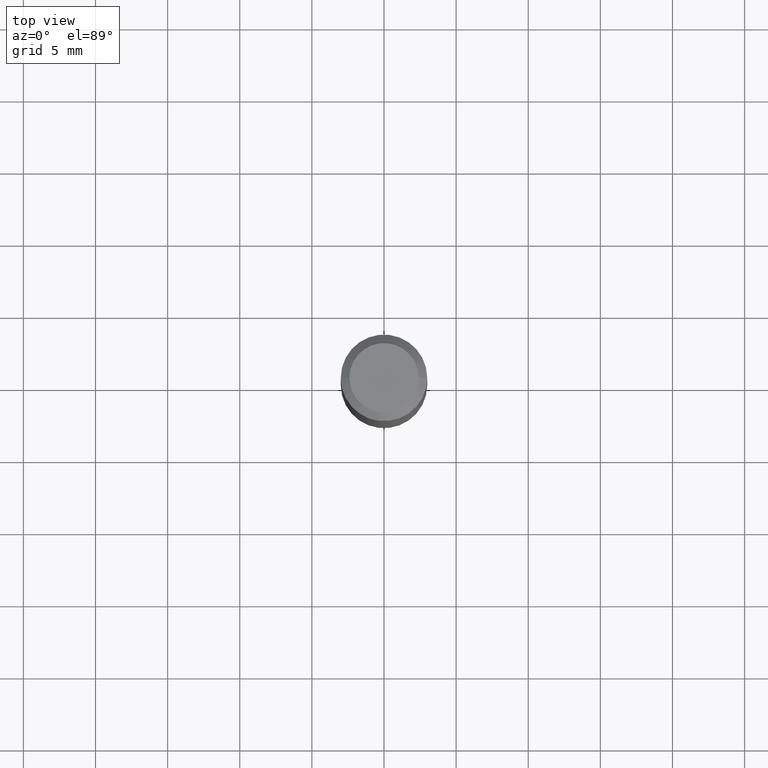
[diagram: clean part render]
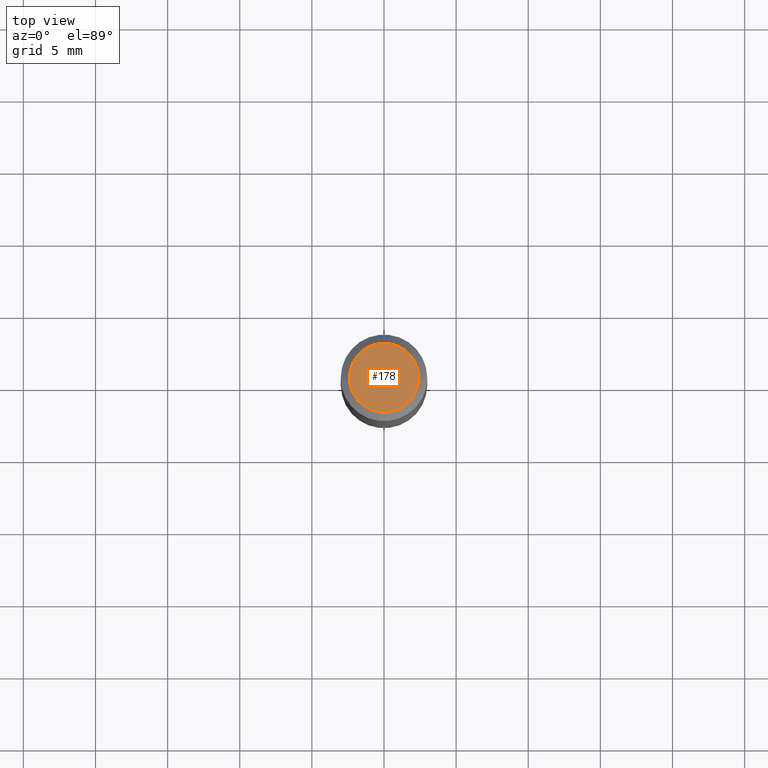
[diagram: same view with one face highlighted and labeled with its STEP entity id]
A machine part, top view. The second image highlights one B-rep face of the part: STEP entity #178.
In plain terms, the highlighted planar face has unit normal (0, -0, -1).
Its self-contained STEP definition (entity closure, byte-faithful):
#7 = CARTESIAN_POINT ( 'NONE',  ( 0.09447999999999998066, -7.704367267948738690E-16, -3.085620075131172158E-17 ) ) ;
#12 = CIRCLE ( 'NONE', #496, 0.09447999999999998066 ) ;
#20 = DIRECTION ( 'NONE',  ( 2.438088387897960049E-29, -3.491481338843145188E-15, -1.000000000000000000 ) ) ;
#26 = EDGE_LOOP ( 'NONE', ( #466, #268 ) ) ;
#68 = VERTEX_POINT ( 'NONE', #7 ) ;
#93 = CARTESIAN_POINT ( 'NONE',  ( -0.09447999999999998066, 7.009847083995354710E-16, -3.085620075132147757E-17 ) ) ;
#178 = ADVANCED_FACE ( 'NONE', ( #378 ), #448, .F. ) ;
#191 = AXIS2_PLACEMENT_3D ( 'NONE', #450, #20, #340 ) ;
#203 = CARTESIAN_POINT ( 'NONE',  ( 7.545787641473140628E-46, -1.077338491108201769E-31, -3.085620075131671975E-17 ) ) ;
#268 = ORIENTED_EDGE ( 'NONE', *, *, #518, .T. ) ;
#272 = DIRECTION ( 'NONE',  ( 1.000000000000000000, -6.982962677686267499E-15, 4.875432709231658792E-29 ) ) ;
#275 = CIRCLE ( 'NONE', #308, 0.09447999999999998066 ) ;
#277 = VERTEX_POINT ( 'NONE', #93 ) ;
#284 = DIRECTION ( 'NONE',  ( -2.445468806185136597E-29, 3.491481338843145583E-15, 1.000000000000000000 ) ) ;
#308 = AXIS2_PLACEMENT_3D ( 'NONE', #203, #284, #323 ) ;
#323 = DIRECTION ( 'NONE',  ( 1.000000000000000000, -6.982962677686267499E-15, 4.875432709231658792E-29 ) ) ;
#340 = DIRECTION ( 'NONE',  ( -1.000000000000000000, 6.982962677686265922E-15, -4.876176775795935793E-29 ) ) ;
#349 = DIRECTION ( 'NONE',  ( -2.445468806185136597E-29, 3.491481338843145583E-15, 1.000000000000000000 ) ) ;
#378 = FACE_OUTER_BOUND ( 'NONE', #26, .T. ) ;
#448 = PLANE ( 'NONE',  #191 ) ;
#450 = CARTESIAN_POINT ( 'NONE',  ( 3.772893820736570314E-46, -5.386692455541008845E-32, -1.542810037565835988E-17 ) ) ;
#454 = EDGE_CURVE ( 'NONE', #277, #68, #12, .T. ) ;
#464 = CARTESIAN_POINT ( 'NONE',  ( 7.545787641473140628E-46, -1.077338491108201769E-31, -3.085620075131671975E-17 ) ) ;
#466 = ORIENTED_EDGE ( 'NONE', *, *, #454, .T. ) ;
#496 = AXIS2_PLACEMENT_3D ( 'NONE', #464, #349, #272 ) ;
#518 = EDGE_CURVE ( 'NONE', #68, #277, #275, .T. ) ;